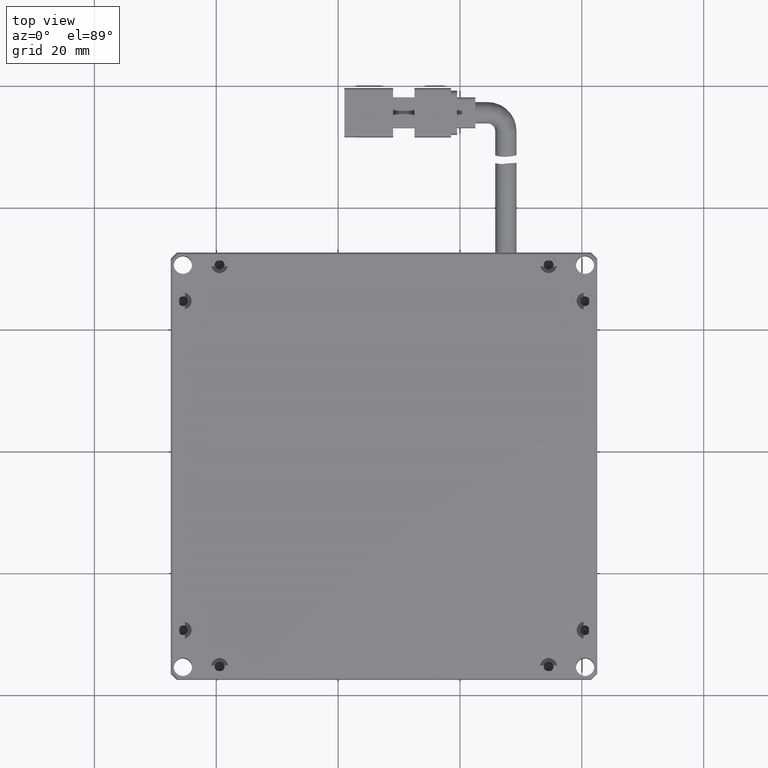
[diagram: clean part render]
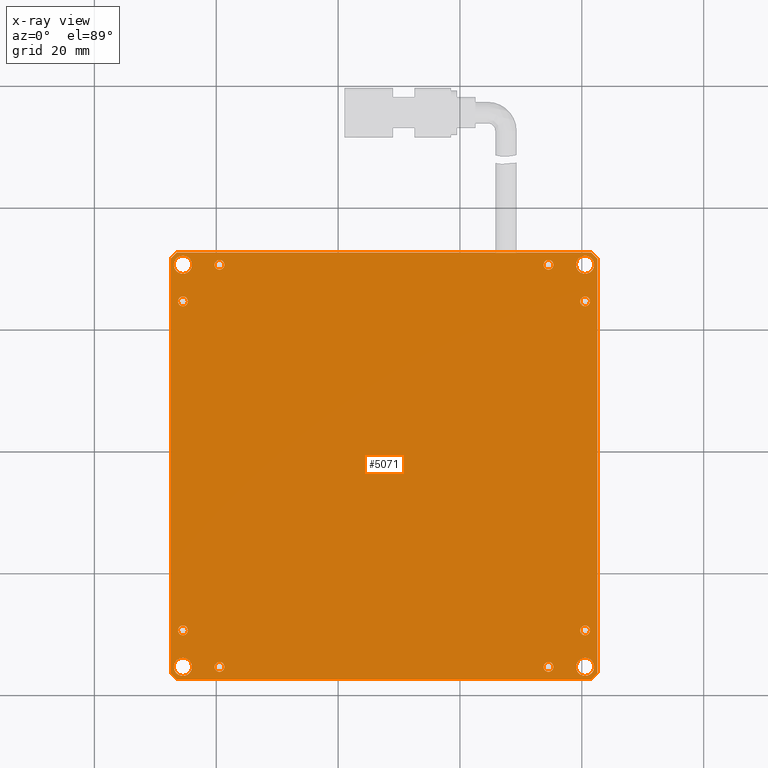
[diagram: x-ray — body ghosted, one internal face saturated and labeled with its STEP entity id]
A machine part, top view, then the same camera in x-ray: the body is ghosted and one INTERNAL B-rep face — a face not visible from any outside direction — is saturated and labeled: STEP entity #5071.
In plain terms, the highlighted planar face has unit normal (0, 0, -1).
Its self-contained STEP definition (entity closure, byte-faithful):
#5 = DIRECTION ( 'NONE',  ( 1.000000000000000000, 0.0000000000000000000, 0.0000000000000000000 ) ) ;
#69 = EDGE_CURVE ( 'NONE', #7714, #4059, #14033, .T. ) ;
#111 = VECTOR ( 'NONE', #1874, 1000.000000000000000 ) ;
#141 = PLANE ( 'NONE',  #9711 ) ;
#209 = CIRCLE ( 'NONE', #12822, 0.7999999999999951600 ) ;
#216 = ORIENTED_EDGE ( 'NONE', *, *, #16878, .T. ) ;
#224 = CARTESIAN_POINT ( 'NONE',  ( 20.53369289340100000, 10.53591370558377300, 4.000000000000000000 ) ) ;
#389 = CARTESIAN_POINT ( 'NONE',  ( -45.46630710659900400, 64.53591370558376600, 4.000000000000000000 ) ) ;
#409 = VERTEX_POINT ( 'NONE', #1441 ) ;
#501 = CIRCLE ( 'NONE', #7867, 0.7999999999999951600 ) ;
#520 = VERTEX_POINT ( 'NONE', #15163 ) ;
#673 = EDGE_CURVE ( 'NONE', #3615, #15222, #12123, .T. ) ;
#678 = ORIENTED_EDGE ( 'NONE', *, *, #13802, .T. ) ;
#715 = EDGE_LOOP ( 'NONE', ( #7535, #6029, #3796, #1556, #216, #12922, #1695, #9008 ) ) ;
#718 = EDGE_CURVE ( 'NONE', #11514, #3165, #3156, .T. ) ;
#760 = EDGE_LOOP ( 'NONE', ( #14715, #7967 ) ) ;
#941 = EDGE_CURVE ( 'NONE', #3398, #3762, #15200, .T. ) ;
#1131 = ORIENTED_EDGE ( 'NONE', *, *, #2806, .T. ) ;
#1165 = DIRECTION ( 'NONE',  ( 1.000000000000000000, 0.0000000000000000000, 0.0000000000000000000 ) ) ;
#1265 = VECTOR ( 'NONE', #17629, 1000.000000000000000 ) ;
#1304 = DIRECTION ( 'NONE',  ( -0.0000000000000000000, -0.0000000000000000000, 1.000000000000000000 ) ) ;
#1324 = DIRECTION ( 'NONE',  ( -0.0000000000000000000, -0.0000000000000000000, 1.000000000000000000 ) ) ;
#1441 = CARTESIAN_POINT ( 'NONE',  ( -40.26630710659901500, 4.535913705583774400, 4.000000000000000000 ) ) ;
#1446 = EDGE_LOOP ( 'NONE', ( #5610, #678 ) ) ;
#1448 = CARTESIAN_POINT ( 'NONE',  ( 14.53369289340098500, 70.53591370558378100, 4.000000000000000000 ) ) ;
#1556 = ORIENTED_EDGE ( 'NONE', *, *, #3634, .T. ) ;
#1615 = VERTEX_POINT ( 'NONE', #6856 ) ;
#1626 = DIRECTION ( 'NONE',  ( -0.0000000000000000000, -0.0000000000000000000, 1.000000000000000000 ) ) ;
#1650 = DIRECTION ( 'NONE',  ( 1.000000000000000000, 0.0000000000000000000, 0.0000000000000000000 ) ) ;
#1695 = ORIENTED_EDGE ( 'NONE', *, *, #16496, .T. ) ;
#1740 = CARTESIAN_POINT ( 'NONE',  ( 15.33369289340098800, 70.53591370558378100, 4.000000000000000000 ) ) ;
#1747 = DIRECTION ( 'NONE',  ( 1.000000000000000000, 0.0000000000000000000, 0.0000000000000000000 ) ) ;
#1748 = FACE_BOUND ( 'NONE', #9250, .T. ) ;
#1834 = DIRECTION ( 'NONE',  ( 1.000000000000000000, 0.0000000000000000000, 0.0000000000000000000 ) ) ;
#1865 = DIRECTION ( 'NONE',  ( 1.000000000000000000, -0.0000000000000000000, 0.0000000000000000000 ) ) ;
#1874 = DIRECTION ( 'NONE',  ( -0.0000000000000000000, -1.000000000000000000, -0.0000000000000000000 ) ) ;
#1961 = AXIS2_PLACEMENT_3D ( 'NONE', #6468, #16435, #7907 ) ;
#2123 = DIRECTION ( 'NONE',  ( -0.0000000000000000000, -0.0000000000000000000, 1.000000000000000000 ) ) ;
#2179 = FACE_BOUND ( 'NONE', #17455, .T. ) ;
#2376 = ORIENTED_EDGE ( 'NONE', *, *, #7336, .T. ) ;
#2391 = CIRCLE ( 'NONE', #10004, 0.8000000000000020400 ) ;
#2504 = VERTEX_POINT ( 'NONE', #2864 ) ;
#2536 = ORIENTED_EDGE ( 'NONE', *, *, #18209, .T. ) ;
#2569 = CARTESIAN_POINT ( 'NONE',  ( -43.96630710659900400, 70.53591370558378100, 4.000000000000000000 ) ) ;
#2683 = CARTESIAN_POINT ( 'NONE',  ( -40.26630710659901500, 70.53591370558378100, 4.000000000000000000 ) ) ;
#2723 = CARTESIAN_POINT ( 'NONE',  ( -46.96630710659900400, 4.535913705583773500, 4.000000000000000000 ) ) ;
#2725 = DIRECTION ( 'NONE',  ( 0.7071067811865474600, -0.7071067811865474600, 0.0000000000000000000 ) ) ;
#2742 = EDGE_LOOP ( 'NONE', ( #12247, #3818 ) ) ;
#2806 = EDGE_CURVE ( 'NONE', #4059, #7714, #7032, .T. ) ;
#2864 = CARTESIAN_POINT ( 'NONE',  ( 22.03369289340100000, 4.535913705583767300, 4.000000000000000000 ) ) ;
#2917 = DIRECTION ( 'NONE',  ( -0.0000000000000000000, -0.0000000000000000000, 1.000000000000000000 ) ) ;
#2962 = DIRECTION ( 'NONE',  ( -0.0000000000000000000, -0.0000000000000000000, 1.000000000000000000 ) ) ;
#3032 = CIRCLE ( 'NONE', #9647, 0.7999999999999951600 ) ;
#3066 = CARTESIAN_POINT ( 'NONE',  ( -39.46630710659901100, 70.53591370558378100, 4.000000000000000000 ) ) ;
#3086 = VERTEX_POINT ( 'NONE', #4302 ) ;
#3156 = LINE ( 'NONE', #4673, #17863 ) ;
#3165 = VERTEX_POINT ( 'NONE', #4563 ) ;
#3252 = CIRCLE ( 'NONE', #7308, 1.500000000000001300 ) ;
#3381 = LINE ( 'NONE', #17361, #6727 ) ;
#3398 = VERTEX_POINT ( 'NONE', #7495 ) ;
#3428 = AXIS2_PLACEMENT_3D ( 'NONE', #224, #10227, #1650 ) ;
#3454 = AXIS2_PLACEMENT_3D ( 'NONE', #12714, #8745, #15335 ) ;
#3535 = CIRCLE ( 'NONE', #1961, 0.8000000000000020400 ) ;
#3615 = VERTEX_POINT ( 'NONE', #1740 ) ;
#3634 = EDGE_CURVE ( 'NONE', #9440, #6948, #3381, .T. ) ;
#3762 = VERTEX_POINT ( 'NONE', #13361 ) ;
#3796 = ORIENTED_EDGE ( 'NONE', *, *, #6838, .T. ) ;
#3818 = ORIENTED_EDGE ( 'NONE', *, *, #5682, .T. ) ;
#3830 = CARTESIAN_POINT ( 'NONE',  ( -39.46630710659901100, 4.535913705583774400, 4.000000000000000000 ) ) ;
#3851 = VERTEX_POINT ( 'NONE', #5284 ) ;
#3857 = DIRECTION ( 'NONE',  ( -0.0000000000000000000, -0.0000000000000000000, 1.000000000000000000 ) ) ;
#3898 = LINE ( 'NONE', #9056, #111 ) ;
#3935 = CARTESIAN_POINT ( 'NONE',  ( 21.33369289340099300, 10.53591370558377300, 4.000000000000000000 ) ) ;
#4059 = VERTEX_POINT ( 'NONE', #14273 ) ;
#4077 = DIRECTION ( 'NONE',  ( -0.7071067811865376900, 0.7071067811865574500, 0.0000000000000000000 ) ) ;
#4302 = CARTESIAN_POINT ( 'NONE',  ( -44.66630710659900000, 10.53591370558376600, 4.000000000000000000 ) ) ;
#4343 = CARTESIAN_POINT ( 'NONE',  ( 13.73369289340098500, 4.535913705583767300, 4.000000000000000000 ) ) ;
#4496 = DIRECTION ( 'NONE',  ( 1.000000000000000000, 0.0000000000000000000, 0.0000000000000000000 ) ) ;
#4548 = VERTEX_POINT ( 'NONE', #15518 ) ;
#4563 = CARTESIAN_POINT ( 'NONE',  ( -47.46630710659900400, 3.535913705583781000, 4.000000000000000000 ) ) ;
#4653 = DIRECTION ( 'NONE',  ( 1.000000000000000000, 0.0000000000000000000, 0.0000000000000000000 ) ) ;
#4661 = LINE ( 'NONE', #15493, #11446 ) ;
#4673 = CARTESIAN_POINT ( 'NONE',  ( -46.46630710659901800, 2.535913705583766400, 4.000000000000000000 ) ) ;
#4729 = DIRECTION ( 'NONE',  ( -0.0000000000000000000, -0.0000000000000000000, 1.000000000000000000 ) ) ;
#4807 = AXIS2_PLACEMENT_3D ( 'NONE', #9908, #1324, #11393 ) ;
#4845 = CARTESIAN_POINT ( 'NONE',  ( -45.46630710659900400, 70.53591370558378100, 4.000000000000000000 ) ) ;
#5071 = ADVANCED_FACE ( 'NONE', ( #14078, #6432, #10261, #13624, #9807, #6026, #2179, #16918, #13191, #9333, #5568, #1748, #16459 ), #141, .T. ) ;
#5111 = CIRCLE ( 'NONE', #6669, 0.8000000000000020400 ) ;
#5265 = CIRCLE ( 'NONE', #18473, 0.7999999999999951600 ) ;
#5268 = DIRECTION ( 'NONE',  ( 1.000000000000000000, 0.0000000000000000000, 0.0000000000000000000 ) ) ;
#5284 = CARTESIAN_POINT ( 'NONE',  ( 22.53369289340100000, 71.53591370558378100, 3.999999999999999100 ) ) ;
#5303 = ORIENTED_EDGE ( 'NONE', *, *, #5830, .T. ) ;
#5409 = CARTESIAN_POINT ( 'NONE',  ( 13.73369289340098500, 70.53591370558378100, 4.000000000000000000 ) ) ;
#5531 = LINE ( 'NONE', #11960, #1265 ) ;
#5568 = FACE_BOUND ( 'NONE', #14667, .T. ) ;
#5610 = ORIENTED_EDGE ( 'NONE', *, *, #673, .T. ) ;
#5682 = EDGE_CURVE ( 'NONE', #10979, #2504, #7366, .T. ) ;
#5719 = EDGE_LOOP ( 'NONE', ( #13915, #1131 ) ) ;
#5744 = DIRECTION ( 'NONE',  ( -0.0000000000000000000, -0.0000000000000000000, 1.000000000000000000 ) ) ;
#5830 = EDGE_CURVE ( 'NONE', #1615, #14308, #10969, .T. ) ;
#6026 = FACE_BOUND ( 'NONE', #5719, .T. ) ;
#6029 = ORIENTED_EDGE ( 'NONE', *, *, #718, .T. ) ;
#6134 = CARTESIAN_POINT ( 'NONE',  ( -45.46630710659900400, 10.53591370558376600, 4.000000000000000000 ) ) ;
#6168 = EDGE_CURVE ( 'NONE', #6460, #11514, #4661, .T. ) ;
#6215 = CARTESIAN_POINT ( 'NONE',  ( -45.46630710659900400, 64.53591370558376600, 4.000000000000000000 ) ) ;
#6366 = EDGE_CURVE ( 'NONE', #9597, #3086, #2391, .T. ) ;
#6432 = FACE_OUTER_BOUND ( 'NONE', #715, .T. ) ;
#6460 = VERTEX_POINT ( 'NONE', #10687 ) ;
#6468 = CARTESIAN_POINT ( 'NONE',  ( -39.46630710659901100, 4.535913705583774400, 4.000000000000000000 ) ) ;
#6497 = EDGE_CURVE ( 'NONE', #4548, #409, #3535, .T. ) ;
#6525 = AXIS2_PLACEMENT_3D ( 'NONE', #3830, #13840, #5268 ) ;
#6641 = ORIENTED_EDGE ( 'NONE', *, *, #9361, .T. ) ;
#6661 = VERTEX_POINT ( 'NONE', #8153 ) ;
#6669 = AXIS2_PLACEMENT_3D ( 'NONE', #3066, #13093, #4496 ) ;
#6727 = VECTOR ( 'NONE', #14436, 1000.000000000000000 ) ;
#6810 = AXIS2_PLACEMENT_3D ( 'NONE', #18258, #9738, #1165 ) ;
#6813 = CIRCLE ( 'NONE', #4807, 0.8000000000000020400 ) ;
#6838 = EDGE_CURVE ( 'NONE', #3165, #9440, #5531, .T. ) ;
#6856 = CARTESIAN_POINT ( 'NONE',  ( -43.96630710659900400, 4.535913705583773500, 4.000000000000000000 ) ) ;
#6947 = DIRECTION ( 'NONE',  ( -0.7071067811865525700, -0.7071067811865425800, 0.0000000000000000000 ) ) ;
#6948 = VERTEX_POINT ( 'NONE', #16372 ) ;
#6994 = EDGE_CURVE ( 'NONE', #2504, #10979, #15281, .T. ) ;
#7032 = CIRCLE ( 'NONE', #16324, 1.500000000000001300 ) ;
#7161 = CARTESIAN_POINT ( 'NONE',  ( -46.46630710659901800, 2.535913705583766400, 4.000000000000000000 ) ) ;
#7215 = VECTOR ( 'NONE', #1865, 1000.000000000000000 ) ;
#7226 = EDGE_CURVE ( 'NONE', #13839, #3851, #18378, .T. ) ;
#7300 = CARTESIAN_POINT ( 'NONE',  ( 15.33369289340097400, 4.535913705583767300, 4.000000000000000000 ) ) ;
#7308 = AXIS2_PLACEMENT_3D ( 'NONE', #10722, #2123, #12162 ) ;
#7311 = DIRECTION ( 'NONE',  ( 0.0000000000000000000, 0.0000000000000000000, -1.000000000000000000 ) ) ;
#7336 = EDGE_CURVE ( 'NONE', #13648, #15382, #8554, .T. ) ;
#7366 = CIRCLE ( 'NONE', #12493, 1.500000000000001300 ) ;
#7414 = CIRCLE ( 'NONE', #6525, 0.8000000000000020400 ) ;
#7495 = CARTESIAN_POINT ( 'NONE',  ( 19.03369289340099600, 70.53591370558378100, 4.000000000000000000 ) ) ;
#7507 = DIRECTION ( 'NONE',  ( -0.0000000000000000000, -0.0000000000000000000, 1.000000000000000000 ) ) ;
#7535 = ORIENTED_EDGE ( 'NONE', *, *, #6168, .T. ) ;
#7542 = DIRECTION ( 'NONE',  ( 1.000000000000000000, 0.0000000000000000000, 0.0000000000000000000 ) ) ;
#7579 = CARTESIAN_POINT ( 'NONE',  ( 21.33369289340097900, 64.53591370558376600, 4.000000000000000000 ) ) ;
#7615 = CARTESIAN_POINT ( 'NONE',  ( -45.46630710659900400, 70.53591370558378100, 4.000000000000000000 ) ) ;
#7616 = VECTOR ( 'NONE', #6947, 999.9999999999998900 ) ;
#7636 = EDGE_CURVE ( 'NONE', #409, #4548, #7414, .T. ) ;
#7662 = DIRECTION ( 'NONE',  ( 1.000000000000000000, 0.0000000000000000000, 0.0000000000000000000 ) ) ;
#7714 = VERTEX_POINT ( 'NONE', #2569 ) ;
#7826 = CIRCLE ( 'NONE', #14710, 0.8000000000000020400 ) ;
#7846 = ORIENTED_EDGE ( 'NONE', *, *, #14676, .T. ) ;
#7867 = AXIS2_PLACEMENT_3D ( 'NONE', #11590, #2962, #12989 ) ;
#7907 = DIRECTION ( 'NONE',  ( 1.000000000000000000, 0.0000000000000000000, 0.0000000000000000000 ) ) ;
#7967 = ORIENTED_EDGE ( 'NONE', *, *, #8279, .T. ) ;
#8031 = LINE ( 'NONE', #16913, #7616 ) ;
#8138 = CARTESIAN_POINT ( 'NONE',  ( 20.53369289340100000, 10.53591370558377300, 4.000000000000000000 ) ) ;
#8153 = CARTESIAN_POINT ( 'NONE',  ( 19.73369289340098800, 64.53591370558376600, 4.000000000000000000 ) ) ;
#8279 = EDGE_CURVE ( 'NONE', #6661, #10527, #209, .T. ) ;
#8422 = EDGE_CURVE ( 'NONE', #18249, #520, #5111, .T. ) ;
#8443 = CARTESIAN_POINT ( 'NONE',  ( 20.53369289340100000, 4.535913705583767300, 4.000000000000000000 ) ) ;
#8454 = VERTEX_POINT ( 'NONE', #7300 ) ;
#8504 = ORIENTED_EDGE ( 'NONE', *, *, #17743, .T. ) ;
#8549 = DIRECTION ( 'NONE',  ( -0.0000000000000000000, -0.0000000000000000000, 1.000000000000000000 ) ) ;
#8552 = EDGE_LOOP ( 'NONE', ( #12885, #9545 ) ) ;
#8554 = CIRCLE ( 'NONE', #3428, 0.7999999999999951600 ) ;
#8745 = DIRECTION ( 'NONE',  ( -0.0000000000000000000, -0.0000000000000000000, 1.000000000000000000 ) ) ;
#9008 = ORIENTED_EDGE ( 'NONE', *, *, #17713, .T. ) ;
#9056 = CARTESIAN_POINT ( 'NONE',  ( 22.53369289340100000, 72.53591370558378100, 4.000000000000000000 ) ) ;
#9139 = ORIENTED_EDGE ( 'NONE', *, *, #8422, .T. ) ;
#9248 = AXIS2_PLACEMENT_3D ( 'NONE', #7615, #12078, #15523 ) ;
#9250 = EDGE_LOOP ( 'NONE', ( #2376, #6641 ) ) ;
#9333 = FACE_BOUND ( 'NONE', #10182, .T. ) ;
#9337 = CARTESIAN_POINT ( 'NONE',  ( 22.53369289340100000, 3.535913705583753100, 4.000000000000000000 ) ) ;
#9361 = EDGE_CURVE ( 'NONE', #15382, #13648, #5265, .T. ) ;
#9440 = VERTEX_POINT ( 'NONE', #15388 ) ;
#9545 = ORIENTED_EDGE ( 'NONE', *, *, #7636, .T. ) ;
#9563 = DIRECTION ( 'NONE',  ( 1.000000000000000000, 0.0000000000000000000, 0.0000000000000000000 ) ) ;
#9597 = VERTEX_POINT ( 'NONE', #14149 ) ;
#9647 = AXIS2_PLACEMENT_3D ( 'NONE', #14292, #5744, #15679 ) ;
#9711 = AXIS2_PLACEMENT_3D ( 'NONE', #15847, #7311, #17294 ) ;
#9738 = DIRECTION ( 'NONE',  ( -0.0000000000000000000, -0.0000000000000000000, 1.000000000000000000 ) ) ;
#9807 = FACE_BOUND ( 'NONE', #16347, .T. ) ;
#9836 = EDGE_LOOP ( 'NONE', ( #2536, #11185 ) ) ;
#9894 = CARTESIAN_POINT ( 'NONE',  ( 20.53369289340098500, 64.53591370558376600, 4.000000000000000000 ) ) ;
#9908 = CARTESIAN_POINT ( 'NONE',  ( -39.46630710659901100, 70.53591370558378100, 4.000000000000000000 ) ) ;
#9918 = DIRECTION ( 'NONE',  ( 1.000000000000000000, 0.0000000000000000000, 0.0000000000000000000 ) ) ;
#10004 = AXIS2_PLACEMENT_3D ( 'NONE', #6134, #16075, #7542 ) ;
#10098 = CIRCLE ( 'NONE', #17757, 0.8000000000000020400 ) ;
#10182 = EDGE_LOOP ( 'NONE', ( #17111, #14698 ) ) ;
#10227 = DIRECTION ( 'NONE',  ( -0.0000000000000000000, -0.0000000000000000000, 1.000000000000000000 ) ) ;
#10261 = FACE_BOUND ( 'NONE', #9836, .T. ) ;
#10333 = VERTEX_POINT ( 'NONE', #15691 ) ;
#10421 = DIRECTION ( 'NONE',  ( -0.0000000000000000000, -0.0000000000000000000, 1.000000000000000000 ) ) ;
#10445 = CARTESIAN_POINT ( 'NONE',  ( -47.46630710659900400, 72.53591370558378100, 4.000000000000000000 ) ) ;
#10468 = EDGE_CURVE ( 'NONE', #18251, #10333, #16790, .T. ) ;
#10478 = AXIS2_PLACEMENT_3D ( 'NONE', #16034, #7507, #17476 ) ;
#10527 = VERTEX_POINT ( 'NONE', #7579 ) ;
#10687 = CARTESIAN_POINT ( 'NONE',  ( 21.53369289340098500, 2.535913705583765900, 4.000000000000000000 ) ) ;
#10722 = CARTESIAN_POINT ( 'NONE',  ( -45.46630710659900400, 4.535913705583773500, 4.000000000000000000 ) ) ;
#10969 = CIRCLE ( 'NONE', #10478, 1.500000000000001300 ) ;
#10979 = VERTEX_POINT ( 'NONE', #15588 ) ;
#11070 = CIRCLE ( 'NONE', #3454, 1.500000000000001300 ) ;
#11185 = ORIENTED_EDGE ( 'NONE', *, *, #941, .T. ) ;
#11383 = DIRECTION ( 'NONE',  ( 1.000000000000000000, 0.0000000000000000000, 0.0000000000000000000 ) ) ;
#11393 = DIRECTION ( 'NONE',  ( 1.000000000000000000, 0.0000000000000000000, 0.0000000000000000000 ) ) ;
#11446 = VECTOR ( 'NONE', #15317, 1000.000000000000000 ) ;
#11514 = VERTEX_POINT ( 'NONE', #7161 ) ;
#11552 = CARTESIAN_POINT ( 'NONE',  ( -45.46630710659900400, 10.53591370558376600, 4.000000000000000000 ) ) ;
#11590 = CARTESIAN_POINT ( 'NONE',  ( 20.53369289340098500, 64.53591370558376600, 4.000000000000000000 ) ) ;
#11836 = AXIS2_PLACEMENT_3D ( 'NONE', #12433, #3857, #13869 ) ;
#11960 = CARTESIAN_POINT ( 'NONE',  ( -47.46630710659900400, 72.53591370558378100, 4.000000000000000000 ) ) ;
#12078 = DIRECTION ( 'NONE',  ( -0.0000000000000000000, -0.0000000000000000000, 1.000000000000000000 ) ) ;
#12123 = CIRCLE ( 'NONE', #16046, 0.8000000000000020400 ) ;
#12157 = EDGE_CURVE ( 'NONE', #14308, #1615, #3252, .T. ) ;
#12162 = DIRECTION ( 'NONE',  ( 1.000000000000000000, 0.0000000000000000000, 0.0000000000000000000 ) ) ;
#12247 = ORIENTED_EDGE ( 'NONE', *, *, #6994, .T. ) ;
#12433 = CARTESIAN_POINT ( 'NONE',  ( 20.53369289340100000, 4.535913705583767300, 4.000000000000000000 ) ) ;
#12493 = AXIS2_PLACEMENT_3D ( 'NONE', #8443, #18425, #9918 ) ;
#12714 = CARTESIAN_POINT ( 'NONE',  ( 20.53369289340100000, 70.53591370558378100, 4.000000000000000000 ) ) ;
#12822 = AXIS2_PLACEMENT_3D ( 'NONE', #9894, #1304, #11383 ) ;
#12885 = ORIENTED_EDGE ( 'NONE', *, *, #6497, .T. ) ;
#12922 = ORIENTED_EDGE ( 'NONE', *, *, #7226, .T. ) ;
#12945 = DIRECTION ( 'NONE',  ( 1.000000000000000000, 0.0000000000000000000, 0.0000000000000000000 ) ) ;
#12956 = CARTESIAN_POINT ( 'NONE',  ( 21.53369289340100000, 72.53591370558378100, 4.000000000000000000 ) ) ;
#12989 = DIRECTION ( 'NONE',  ( 1.000000000000000000, 0.0000000000000000000, 0.0000000000000000000 ) ) ;
#13093 = DIRECTION ( 'NONE',  ( -0.0000000000000000000, -0.0000000000000000000, 1.000000000000000000 ) ) ;
#13184 = AXIS2_PLACEMENT_3D ( 'NONE', #389, #10421, #1834 ) ;
#13191 = FACE_BOUND ( 'NONE', #1446, .T. ) ;
#13205 = ORIENTED_EDGE ( 'NONE', *, *, #16241, .T. ) ;
#13361 = CARTESIAN_POINT ( 'NONE',  ( 22.03369289340100000, 70.53591370558378100, 4.000000000000000000 ) ) ;
#13624 = FACE_BOUND ( 'NONE', #2742, .T. ) ;
#13648 = VERTEX_POINT ( 'NONE', #3935 ) ;
#13802 = EDGE_CURVE ( 'NONE', #15222, #3615, #7826, .T. ) ;
#13824 = AXIS2_PLACEMENT_3D ( 'NONE', #15666, #17403, #17467 ) ;
#13839 = VERTEX_POINT ( 'NONE', #12956 ) ;
#13840 = DIRECTION ( 'NONE',  ( -0.0000000000000000000, -0.0000000000000000000, 1.000000000000000000 ) ) ;
#13869 = DIRECTION ( 'NONE',  ( 1.000000000000000000, 0.0000000000000000000, 0.0000000000000000000 ) ) ;
#13915 = ORIENTED_EDGE ( 'NONE', *, *, #69, .T. ) ;
#14033 = CIRCLE ( 'NONE', #9248, 1.500000000000001300 ) ;
#14078 = FACE_BOUND ( 'NONE', #8552, .T. ) ;
#14149 = CARTESIAN_POINT ( 'NONE',  ( -46.26630710659900800, 10.53591370558376600, 4.000000000000000000 ) ) ;
#14273 = CARTESIAN_POINT ( 'NONE',  ( -46.96630710659900400, 70.53591370558378100, 4.000000000000000000 ) ) ;
#14292 = CARTESIAN_POINT ( 'NONE',  ( 14.53369289340097800, 4.535913705583767300, 4.000000000000000000 ) ) ;
#14308 = VERTEX_POINT ( 'NONE', #2723 ) ;
#14436 = DIRECTION ( 'NONE',  ( 0.7071067811865439100, 0.7071067811865512400, 0.0000000000000000000 ) ) ;
#14544 = CARTESIAN_POINT ( 'NONE',  ( 19.73369289340100300, 10.53591370558377300, 4.000000000000000000 ) ) ;
#14631 = VECTOR ( 'NONE', #2725, 1000.000000000000100 ) ;
#14667 = EDGE_LOOP ( 'NONE', ( #15989, #17339 ) ) ;
#14676 = EDGE_CURVE ( 'NONE', #8454, #18398, #18471, .T. ) ;
#14698 = ORIENTED_EDGE ( 'NONE', *, *, #6366, .T. ) ;
#14710 = AXIS2_PLACEMENT_3D ( 'NONE', #17087, #8549, #5 ) ;
#14715 = ORIENTED_EDGE ( 'NONE', *, *, #18428, .T. ) ;
#14807 = ORIENTED_EDGE ( 'NONE', *, *, #12157, .T. ) ;
#14874 = EDGE_LOOP ( 'NONE', ( #13205, #9139 ) ) ;
#15163 = CARTESIAN_POINT ( 'NONE',  ( -38.66630710659901400, 70.53591370558378100, 4.000000000000000000 ) ) ;
#15200 = CIRCLE ( 'NONE', #13824, 1.500000000000001300 ) ;
#15222 = VERTEX_POINT ( 'NONE', #5409 ) ;
#15281 = CIRCLE ( 'NONE', #11836, 1.500000000000001300 ) ;
#15317 = DIRECTION ( 'NONE',  ( -1.000000000000000000, 0.0000000000000000000, -0.0000000000000000000 ) ) ;
#15335 = DIRECTION ( 'NONE',  ( 1.000000000000000000, 0.0000000000000000000, 0.0000000000000000000 ) ) ;
#15382 = VERTEX_POINT ( 'NONE', #14544 ) ;
#15388 = CARTESIAN_POINT ( 'NONE',  ( -47.46630710659900400, 71.53591370558378100, 4.000000000000000000 ) ) ;
#15493 = CARTESIAN_POINT ( 'NONE',  ( -47.46630710659900400, 2.535913705583766400, 4.000000000000000000 ) ) ;
#15518 = CARTESIAN_POINT ( 'NONE',  ( -38.66630710659901400, 4.535913705583774400, 4.000000000000000000 ) ) ;
#15523 = DIRECTION ( 'NONE',  ( 1.000000000000000000, 0.0000000000000000000, 0.0000000000000000000 ) ) ;
#15588 = CARTESIAN_POINT ( 'NONE',  ( 19.03369289340099600, 4.535913705583767300, 4.000000000000000000 ) ) ;
#15666 = CARTESIAN_POINT ( 'NONE',  ( 20.53369289340100000, 70.53591370558378100, 4.000000000000000000 ) ) ;
#15679 = DIRECTION ( 'NONE',  ( 1.000000000000000000, 0.0000000000000000000, 0.0000000000000000000 ) ) ;
#15691 = CARTESIAN_POINT ( 'NONE',  ( -44.66630710659900000, 64.53591370558376600, 4.000000000000000000 ) ) ;
#15847 = CARTESIAN_POINT ( 'NONE',  ( -47.46630710659900400, 72.53591370558378100, 4.000000000000000000 ) ) ;
#15989 = ORIENTED_EDGE ( 'NONE', *, *, #17494, .T. ) ;
#16034 = CARTESIAN_POINT ( 'NONE',  ( -45.46630710659900400, 4.535913705583773500, 4.000000000000000000 ) ) ;
#16046 = AXIS2_PLACEMENT_3D ( 'NONE', #1448, #1626, #1747 ) ;
#16070 = CIRCLE ( 'NONE', #18366, 0.8000000000000020400 ) ;
#16075 = DIRECTION ( 'NONE',  ( -0.0000000000000000000, -0.0000000000000000000, 1.000000000000000000 ) ) ;
#16181 = DIRECTION ( 'NONE',  ( -0.0000000000000000000, -0.0000000000000000000, 1.000000000000000000 ) ) ;
#16241 = EDGE_CURVE ( 'NONE', #520, #18249, #6813, .T. ) ;
#16324 = AXIS2_PLACEMENT_3D ( 'NONE', #4845, #4729, #4653 ) ;
#16347 = EDGE_LOOP ( 'NONE', ( #5303, #14807 ) ) ;
#16372 = CARTESIAN_POINT ( 'NONE',  ( -46.46630710659900400, 72.53591370558378100, 3.999999999999999100 ) ) ;
#16435 = DIRECTION ( 'NONE',  ( -0.0000000000000000000, -0.0000000000000000000, 1.000000000000000000 ) ) ;
#16459 = FACE_BOUND ( 'NONE', #760, .T. ) ;
#16496 = EDGE_CURVE ( 'NONE', #3851, #17060, #3898, .T. ) ;
#16728 = CARTESIAN_POINT ( 'NONE',  ( -46.26630710659900800, 64.53591370558376600, 4.000000000000000000 ) ) ;
#16790 = CIRCLE ( 'NONE', #13184, 0.8000000000000020400 ) ;
#16878 = EDGE_CURVE ( 'NONE', #6948, #13839, #18124, .T. ) ;
#16913 = CARTESIAN_POINT ( 'NONE',  ( 22.53369289340100000, 3.535913705583767300, 4.000000000000000000 ) ) ;
#16918 = FACE_BOUND ( 'NONE', #14874, .T. ) ;
#17060 = VERTEX_POINT ( 'NONE', #9337 ) ;
#17073 = CARTESIAN_POINT ( 'NONE',  ( 21.53369289340100000, 72.53591370558378100, 4.000000000000000000 ) ) ;
#17087 = CARTESIAN_POINT ( 'NONE',  ( 14.53369289340098500, 70.53591370558378100, 4.000000000000000000 ) ) ;
#17111 = ORIENTED_EDGE ( 'NONE', *, *, #17292, .T. ) ;
#17292 = EDGE_CURVE ( 'NONE', #3086, #9597, #10098, .T. ) ;
#17294 = DIRECTION ( 'NONE',  ( -1.000000000000000000, 0.0000000000000000000, -0.0000000000000000000 ) ) ;
#17339 = ORIENTED_EDGE ( 'NONE', *, *, #10468, .T. ) ;
#17361 = CARTESIAN_POINT ( 'NONE',  ( -47.46630710659901100, 71.53591370558376600, 4.000000000000000000 ) ) ;
#17403 = DIRECTION ( 'NONE',  ( -0.0000000000000000000, -0.0000000000000000000, 1.000000000000000000 ) ) ;
#17455 = EDGE_LOOP ( 'NONE', ( #7846, #8504 ) ) ;
#17467 = DIRECTION ( 'NONE',  ( 1.000000000000000000, 0.0000000000000000000, 0.0000000000000000000 ) ) ;
#17476 = DIRECTION ( 'NONE',  ( 1.000000000000000000, 0.0000000000000000000, 0.0000000000000000000 ) ) ;
#17494 = EDGE_CURVE ( 'NONE', #10333, #18251, #16070, .T. ) ;
#17629 = DIRECTION ( 'NONE',  ( 0.0000000000000000000, 1.000000000000000000, 0.0000000000000000000 ) ) ;
#17713 = EDGE_CURVE ( 'NONE', #17060, #6460, #8031, .T. ) ;
#17743 = EDGE_CURVE ( 'NONE', #18398, #8454, #3032, .T. ) ;
#17757 = AXIS2_PLACEMENT_3D ( 'NONE', #11552, #2917, #12945 ) ;
#17863 = VECTOR ( 'NONE', #4077, 999.9999999999998900 ) ;
#18105 = DIRECTION ( 'NONE',  ( -0.0000000000000000000, -0.0000000000000000000, 1.000000000000000000 ) ) ;
#18124 = LINE ( 'NONE', #10445, #7215 ) ;
#18209 = EDGE_CURVE ( 'NONE', #3762, #3398, #11070, .T. ) ;
#18249 = VERTEX_POINT ( 'NONE', #2683 ) ;
#18251 = VERTEX_POINT ( 'NONE', #16728 ) ;
#18258 = CARTESIAN_POINT ( 'NONE',  ( 14.53369289340097800, 4.535913705583767300, 4.000000000000000000 ) ) ;
#18366 = AXIS2_PLACEMENT_3D ( 'NONE', #6215, #16181, #7662 ) ;
#18378 = LINE ( 'NONE', #17073, #14631 ) ;
#18398 = VERTEX_POINT ( 'NONE', #4343 ) ;
#18425 = DIRECTION ( 'NONE',  ( -0.0000000000000000000, -0.0000000000000000000, 1.000000000000000000 ) ) ;
#18428 = EDGE_CURVE ( 'NONE', #10527, #6661, #501, .T. ) ;
#18471 = CIRCLE ( 'NONE', #6810, 0.7999999999999951600 ) ;
#18473 = AXIS2_PLACEMENT_3D ( 'NONE', #8138, #18105, #9563 ) ;